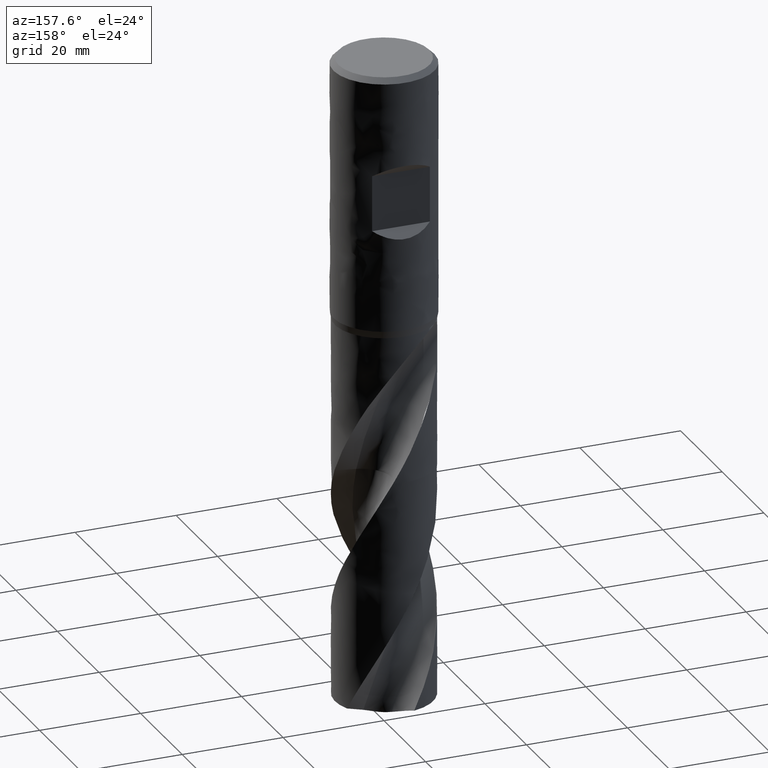
[diagram: clean part render]
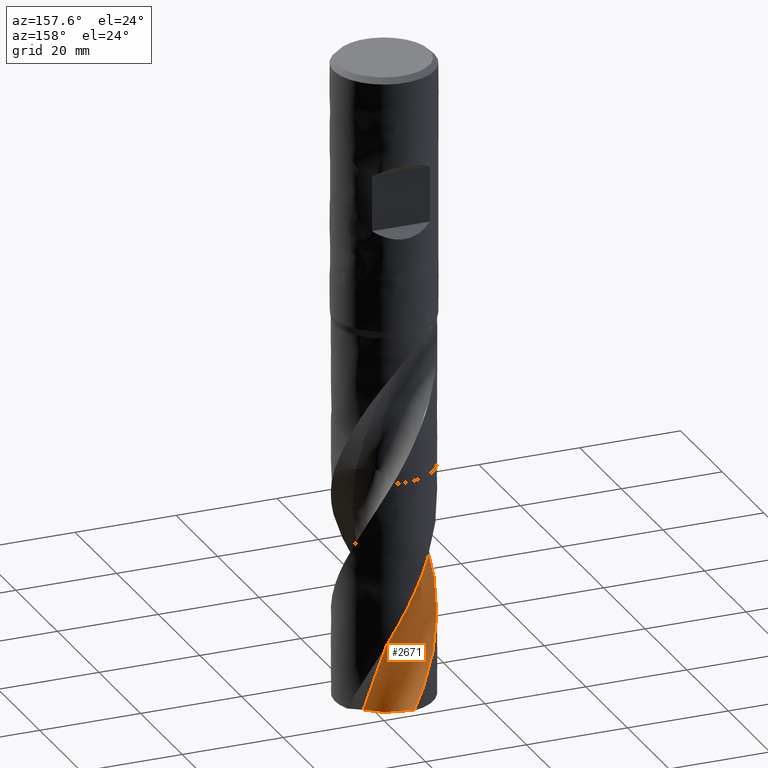
[diagram: same view with one face highlighted and labeled with its STEP entity id]
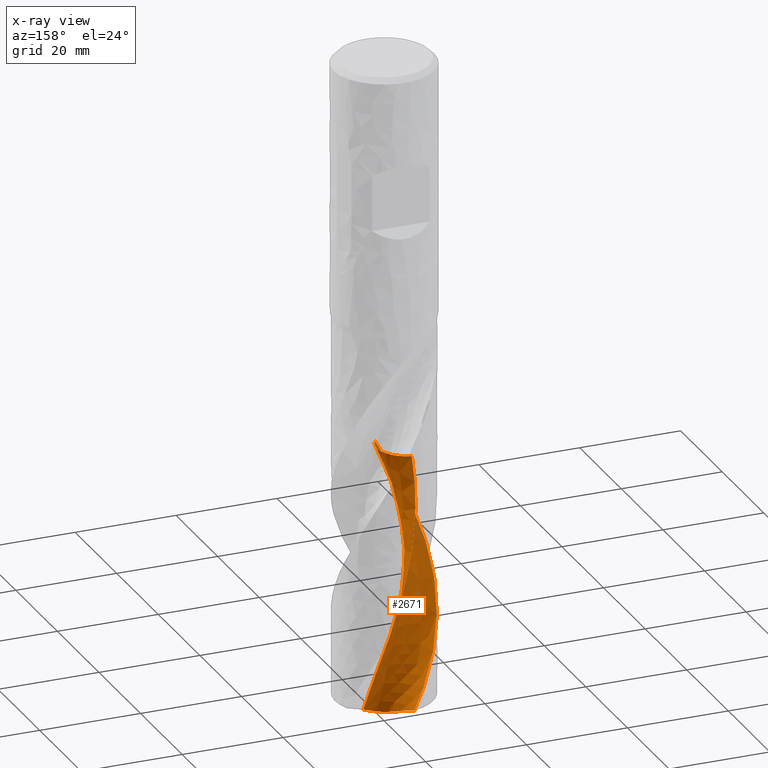
[diagram: x-ray of the same camera — body ghosted, the highlighted face saturated]
A machine part, auxiliary view. The second image highlights one B-rep face of the part: STEP entity #2671.
The next image is the same camera in x-ray: the body ghosted, the highlighted face saturated — about 3% of this face is hidden behind the body in this view.
In plain terms, the highlighted face is a freeform B-spline surface patch.
Its self-contained STEP definition (entity closure, byte-faithful):
#2099 = VERTEX_POINT('', #2100);
#2100 = CARTESIAN_POINT('', (-2.1303313621447, -9.51442001844898, -81.25));
#2215 = VERTEX_POINT('', #2216);
#2216 = CARTESIAN_POINT('', (-5.79487165966513, -0.700667770575247, -81.25));
#2222 = EDGE_CURVE('', #2215, #2099, #2223, .T.);
#2223 = B_SPLINE_CURVE_WITH_KNOTS('', 3, (#2224, #2225, #2226, #2227, #2228, #2229, #2230, #2231, #2232, #2233, #2234, #2235, #2236, #2237, #2238, #2239, #2240, #2241, #2242, #2243, #2244, #2245, #2246, #2247, #2248, #2249, #2250, #2251, #2252, #2253, #2254, #2255, #2256, #2257, #2258, #2259, #2260, #2261, #2262, #2263, #2264, #2265, #2266, #2267, #2268, #2269, #2270, #2271, #2272, #2273, #2274, #2275, #2276, #2277, #2278, #2279, #2280, #2281, #2282, #2283, #2284, #2285, #2286, #2287, #2288, #2289, #2290, #2291, #2292, #2293, #2294, #2295, #2296, #2297, #2298, #2299, #2300, #2301, #2302, #2303, #2304, #2305, #2306, #2307, #2308), .UNSPECIFIED., .F., .U., (4, 3, 3, 3, 3, 3, 3, 3, 3, 3, 3, 3, 3, 3, 3, 3, 3, 3, 3, 3, 3, 3, 3, 3, 3, 3, 3, 3, 4), (0., 0.445438478742178, 0.89053582433214, 1.33529858425115, 1.77973217103875, 2.22384093205399, 2.66762820456157, 3.11109635764876, 3.55424682209733, 3.99708010900506, 4.43959581765818, 4.88179263288638, 5.32366831187187, 5.52035944247492, 5.60786094109893, 5.6467910889325, 6.09220446272866, 6.53727722058495, 6.98201582457693, 7.42642560745706, 7.87051084128652, 8.31427479151568, 8.75771975798971, 9.20084710397753, 9.64365727399644, 10.0861498009137, 10.5283233025367, 10.9701754676464, 11.1611266697053), .UNSPECIFIED.);
#2224 = CARTESIAN_POINT('', (-5.79487165966514, -0.700667770575248, -81.25));
#2225 = CARTESIAN_POINT('', (-5.650055718771, -0.733447384346021, -81.25));
#2226 = CARTESIAN_POINT('', (-5.50638472364921, -0.771772103794922, -81.25));
#2227 = CARTESIAN_POINT('', (-5.36448272780797, -0.815475460557196, -81.25));
#2228 = CARTESIAN_POINT('', (-5.22268940572857, -0.859145347683222, -81.25));
#2229 = CARTESIAN_POINT('', (-5.08245730758918, -0.908248780882545, -81.25));
#2230 = CARTESIAN_POINT('', (-4.94439461800622, -0.962572799263302, -81.25));
#2231 = CARTESIAN_POINT('', (-4.80643571200697, -1.0168559815476, -81.25));
#2232 = CARTESIAN_POINT('', (-4.6704437328964, -1.07643027834599, -81.25));
#2233 = CARTESIAN_POINT('', (-4.5370075905335, -1.14103770465851, -81.25));
#2234 = CARTESIAN_POINT('', (-4.40367020552347, -1.20559731440285, -81.25));
#2235 = CARTESIAN_POINT('', (-4.27269261268322, -1.27527568315273, -81.25));
#2236 = CARTESIAN_POINT('', (-4.14464116884227, -1.3497715164718, -81.25));
#2237 = CARTESIAN_POINT('', (-4.01668331470828, -1.4242129025859, -81.25));
#2238 = CARTESIAN_POINT('', (-3.89146309717154, -1.50357188260932, -81.25));
#2239 = CARTESIAN_POINT('', (-3.7695211874044, -1.58750580330595, -81.25));
#2240 = CARTESIAN_POINT('', (-3.64766755088478, -1.67137896458219, -81.25));
#2241 = CARTESIAN_POINT('', (-3.52891228316294, -1.75994101932054, -81.25));
#2242 = CARTESIAN_POINT('', (-3.41376739999561, -1.85281013041733, -81.25));
#2243 = CARTESIAN_POINT('', (-3.29870531543621, -1.94561246101197, -81.25));
#2244 = CARTESIAN_POINT('', (-3.18708323205514, -2.04284887596128, -81.25));
#2245 = CARTESIAN_POINT('', (-3.07938171960083, -2.1441007405466, -81.25));
#2246 = CARTESIAN_POINT('', (-2.97175736160875, -2.24528007102369, -81.25));
#2247 = CARTESIAN_POINT('', (-2.86789366486767, -2.35061413892586, -81.25));
#2248 = CARTESIAN_POINT('', (-2.76823715696246, -2.45965009529411, -81.25));
#2249 = CARTESIAN_POINT('', (-2.66865197653775, -2.56860801099834, -81.25));
#2250 = CARTESIAN_POINT('', (-2.57312539837042, -2.68141848522746, -81.25));
#2251 = CARTESIAN_POINT('', (-2.48206752032289, -2.79759721994391, -81.25));
#2252 = CARTESIAN_POINT('', (-2.39107494450723, -2.91369263698555, -81.25));
#2253 = CARTESIAN_POINT('', (-2.30441458173085, -3.03331743264568, -81.25));
#2254 = CARTESIAN_POINT('', (-2.22245793413602, -3.15595879037894, -81.25));
#2255 = CARTESIAN_POINT('', (-2.14056034757685, -3.27851176814775, -81.25));
#2256 = CARTESIAN_POINT('', (-2.06324278812382, -3.40425188909768, -81.25));
#2257 = CARTESIAN_POINT('', (-1.99083622946069, -3.53264089683113, -81.25));
#2258 = CARTESIAN_POINT('', (-1.91848225455527, -3.66093666471723, -81.25));
#2259 = CARTESIAN_POINT('', (-1.85092901050433, -3.79206033356708, -81.25));
#2260 = CARTESIAN_POINT('', (-1.78846525342089, -3.92545141570198, -81.25));
#2261 = CARTESIAN_POINT('', (-1.76066090123146, -3.9848274891209, -81.25));
#2262 = CARTESIAN_POINT('', (-1.73385108599112, -4.04467950769173, -81.25));
#2263 = CARTESIAN_POINT('', (-1.70805853356387, -4.10495673668088, -81.25));
#2264 = CARTESIAN_POINT('', (-1.69658426431846, -4.13177211901806, -81.25));
#2265 = CARTESIAN_POINT('', (-1.68531023113301, -4.15867406930673, -81.25));
#2266 = CARTESIAN_POINT('', (-1.67423832565911, -4.18565807371272, -81.25));
#2267 = CARTESIAN_POINT('', (-1.66931234240537, -4.19766348273069, -81.25));
#2268 = CARTESIAN_POINT('', (-1.66442627865889, -4.20968534891356, -81.25));
#2269 = CARTESIAN_POINT('', (-1.65958029670401, -4.22172327297039, -81.25));
#2270 = CARTESIAN_POINT('', (-1.60413573016637, -4.35945335276802, -81.25));
#2271 = CARTESIAN_POINT('', (-1.55390194674591, -4.49939693624681, -81.25));
#2272 = CARTESIAN_POINT('', (-1.50909711879584, -4.64094622883414, -81.25));
#2273 = CARTESIAN_POINT('', (-1.46432655393593, -4.78238727602928, -81.25));
#2274 = CARTESIAN_POINT('', (-1.42491189201081, -4.92563610467066, -81.25));
#2275 = CARTESIAN_POINT('', (-1.39102405498403, -5.07007151518755, -81.25));
#2276 = CARTESIAN_POINT('', (-1.35716166043041, -5.21439848579271, -81.25));
#2277 = CARTESIAN_POINT('', (-1.32876889005426, -5.36011864423298, -81.25));
#2278 = CARTESIAN_POINT('', (-1.30596868469553, -5.50660102148216, -81.25));
#2279 = CARTESIAN_POINT('', (-1.28318533685447, -5.65297509579176, -81.25));
#2280 = CARTESIAN_POINT('', (-1.26595342788655, -5.80032129268378, -81.25));
#2281 = CARTESIAN_POINT('', (-1.25434746187178, -5.94800254444481, -81.25));
#2282 = CARTESIAN_POINT('', (-1.24274997160484, -6.0955759457221, -81.25));
#2283 = CARTESIAN_POINT('', (-1.23675350229713, -6.24369636189629, -81.25));
#2284 = CARTESIAN_POINT('', (-1.23638394253939, -6.39172431186056, -81.25));
#2285 = CARTESIAN_POINT('', (-1.2360146501481, -6.53964516762515, -81.25));
#2286 = CARTESIAN_POINT('', (-1.24126358584812, -6.68768633284561, -81.25));
#2287 = CARTESIAN_POINT('', (-1.25210812112224, -6.83520959203442, -81.25));
#2288 = CARTESIAN_POINT('', (-1.26294486119221, -6.9826268094342, -81.25));
#2289 = CARTESIAN_POINT('', (-1.27938470361027, -7.12973847917799, -81.25));
#2290 = CARTESIAN_POINT('', (-1.30135687684578, -7.2759113033436, -81.25));
#2291 = CARTESIAN_POINT('', (-1.32331331236212, -7.42197943022545, -81.25));
#2292 = CARTESIAN_POINT('', (-1.35082561772212, -7.56731943412406, -81.25));
#2293 = CARTESIAN_POINT('', (-1.38377552520294, -7.71130653892293, -81.25));
#2294 = CARTESIAN_POINT('', (-1.41670184822452, -7.85519058249147, -81.25));
#2295 = CARTESIAN_POINT('', (-1.45510511050732, -7.99792961642851, -81.25));
#2296 = CARTESIAN_POINT('', (-1.49882046313067, -8.13891092258777, -81.25));
#2297 = CARTESIAN_POINT('', (-1.54250445721453, -8.27979109796367, -81.25));
#2298 = CARTESIAN_POINT('', (-1.59155535062665, -8.41911743232396, -81.25));
#2299 = CARTESIAN_POINT('', (-1.64576289032544, -8.55629271359893, -81.25));
#2300 = CARTESIAN_POINT('', (-1.69993134783584, -8.69336909515969, -81.25));
#2301 = CARTESIAN_POINT('', (-1.75932632060481, -8.82849317237358, -81.25));
#2302 = CARTESIAN_POINT('', (-1.82369358303993, -8.96108657981699, -81.25));
#2303 = CARTESIAN_POINT('', (-1.88801406847097, -9.09358362892346, -81.25));
#2304 = CARTESIAN_POINT('', (-1.95739127809331, -9.22374252424689, -81.25));
#2305 = CARTESIAN_POINT('', (-2.03152869078605, -9.35100696117737, -81.25));
#2306 = CARTESIAN_POINT('', (-2.06356797720147, -9.40600566692141, -81.25));
#2307 = CARTESIAN_POINT('', (-2.09651407554776, -9.46049632574577, -81.25));
#2308 = CARTESIAN_POINT('', (-2.1303313621447, -9.51442001844898, -81.25));
#2576 = EDGE_CURVE('', #2099, #2577, #2579, .T.);
#2577 = VERTEX_POINT('', #2578);
#2578 = CARTESIAN_POINT('', (-4.9410709043237, -8.40525539876366, -86.5190317909067));
#2579 = B_SPLINE_CURVE_WITH_KNOTS('', 3, (#2580, #2581, #2582, #2583, #2584, #2585, #2586, #2587, #2588, #2589, #2590, #2591, #2592, #2593, #2594, #2595), .UNSPECIFIED., .F., .U., (4, 3, 3, 3, 3, 4), (11.847017486979, 13.2116838659022, 14.709698213569, 16.2074142235632, 17.7048427508972, 17.9267222328818), .UNSPECIFIED.);
#2580 = CARTESIAN_POINT('', (-2.1303313621447, -9.51442001844898, -81.25));
#2581 = CARTESIAN_POINT('', (-2.35197104986254, -9.46479366424917, -81.6441280093711));
#2582 = CARTESIAN_POINT('', (-2.57186920348224, -9.40741949953923, -82.038363018998));
#2583 = CARTESIAN_POINT('', (-2.78943116547099, -9.34246079858495, -82.4325342683803));
#2584 = CARTESIAN_POINT('', (-3.02825212977354, -9.2711546775152, -82.8652218439901));
#2585 = CARTESIAN_POINT('', (-3.26435802313561, -9.19067774677503, -83.2980020038723));
#2586 = CARTESIAN_POINT('', (-3.496959546844, -9.10130616602558, -83.7307233988858));
#2587 = CARTESIAN_POINT('', (-3.72951474669884, -9.01195238411059, -84.1633586150892));
#2588 = CARTESIAN_POINT('', (-3.95865082601514, -8.91367550219773, -84.5960939338208));
#2589 = CARTESIAN_POINT('', (-4.18361093543052, -8.80680983903623, -85.0287738719163));
#2590 = CARTESIAN_POINT('', (-4.4085278643429, -8.6999646884585, -85.4613707582324));
#2591 = CARTESIAN_POINT('', (-4.62935237651358, -8.58449540937735, -85.8940702853487));
#2592 = CARTESIAN_POINT('', (-4.84536490896236, -8.46078831427638, -86.3267118432352));
#2593 = CARTESIAN_POINT('', (-4.87737227888154, -8.4424581798641, -86.3908179311029));
#2594 = CARTESIAN_POINT('', (-4.90927504844759, -8.42394674969758, -86.454924747551));
#2595 = CARTESIAN_POINT('', (-4.94107090432363, -8.40525539876371, -86.5190317909066));
#2671 = ADVANCED_FACE('', (#2672), #2906, .T.);
#2672 = FACE_OUTER_BOUND('', #2673, .T.);
#2673 = EDGE_LOOP('', (#2674, #2675, #2710, #2860, #2878, #2905));
#2674 = ORIENTED_EDGE('', *, *, #2222, .F.);
#2675 = ORIENTED_EDGE('', *, *, #2676, .F.);
#2676 = EDGE_CURVE('', #2677, #2215, #2679, .T.);
#2677 = VERTEX_POINT('', #2678);
#2678 = CARTESIAN_POINT('', (5.20453332655529, 2.64650215276835, -128.874864455112));
#2679 = (
   BOUNDED_CURVE ()
   B_SPLINE_CURVE (3, (#2680, #2681, #2682, #2683, #2684, #2685, #2686, #2687, #2688, #2689, #2690, #2691, #2692, #2693, #2694, #2695, #2696, #2697, #2698, #2699, #2700, #2701, #2702, #2703, #2704, #2705, #2706, #2707, #2708, #2709), .UNSPECIFIED., .F., .U.)
   B_SPLINE_CURVE_WITH_KNOTS ((4, 1, 1, 1, 1, 1, 1, 1, 1, 1, 1, 1, 1, 1, 1, 1, 1, 1, 1, 1, 1, 1, 1, 1, 1, 1, 1, 4), (2.17513554488771, 3.59409090909091, 5.39113636363636, 7.18818181818182, 8.98522727272727, 10.7822727272727, 12.5793181818182, 14.3763636363636, 16.1734090909091, 17.9704545454545, 19.7675, 21.5645454545455, 23.3615909090909, 25.1586363636364, 26.9556818181818, 28.7527272727273, 30.5497727272727, 32.3468181818182, 34.1438636363636, 35.9409090909091, 37.7379545454545, 39.535, 41.3320454545455, 43.1290909090909, 44.9261363636364, 46.7231818181818, 48.5202272727273, 49.8), .UNSPECIFIED.)
   CURVE ()
   GEOMETRIC_REPRESENTATION_ITEM ()
   RATIONAL_B_SPLINE_CURVE ((1., 1., 1., 1., 1., 1., 1., 1., 1., 1., 1., 1., 1., 1., 1., 1., 1., 1., 1., 1., 1., 1., 1., 1., 1., 1., 1., 1., 1., 1.))
   REPRESENTATION_ITEM ('')
);
#2680 = CARTESIAN_POINT('', (5.20453332655529, 2.64650215276835, -128.874864455112));
#2681 = CARTESIAN_POINT('', (5.12772566920618, 2.78904303751222, -128.401879333711));
#2682 = CARTESIAN_POINT('', (4.94062056874988, 3.10467070062692, -127.329879060795));
#2683 = CARTESIAN_POINT('', (4.60519286852005, 3.56677039742829, -125.658863636364));
#2684 = CARTESIAN_POINT('', (4.19593244438877, 4.0227559318071, -123.861818181818));
#2685 = CARTESIAN_POINT('', (3.74264239469812, 4.43315419355822, -122.064772727273));
#2686 = CARTESIAN_POINT('', (3.25026342139271, 4.7938334214426, -120.267727272727));
#2687 = CARTESIAN_POINT('', (2.72410868545958, 5.10118041557474, -118.470681818182));
#2688 = CARTESIAN_POINT('', (2.16981419772114, 5.35213545623919, -116.673636363636));
#2689 = CARTESIAN_POINT('', (1.59328194765886, 5.54421912375713, -114.876590909091));
#2690 = CARTESIAN_POINT('', (1.0006220687681, 5.67555441648993, -113.079545454545));
#2691 = CARTESIAN_POINT('', (0.39809299749953, 5.74488304443128, -111.2825));
#2692 = CARTESIAN_POINT('', (-0.207959437153887, 5.751576043841, -109.485454545455));
#2693 = CARTESIAN_POINT('', (-0.811163578612336, 5.69563857601772, -107.688409090909));
#2694 = CARTESIAN_POINT('', (-1.40518360369422, 5.57770890650514, -105.891363636364));
#2695 = CARTESIAN_POINT('', (-1.9837807603662, 5.39905158270688, -104.094318181818));
#2696 = CARTESIAN_POINT('', (-2.54087365756571, 5.16154487905098, -102.297272727273));
#2697 = CARTESIAN_POINT('', (-3.07059709362434, 4.86766262122732, -100.500227272727));
#2698 = CARTESIAN_POINT('', (-3.56735891970645, 4.52045054540657, -98.7031818181818));
#2699 = CARTESIAN_POINT('', (-4.02589445349643, 4.1234973885984, -96.9061363636364));
#2700 = CARTESIAN_POINT('', (-4.44131796266385, 3.68090095494357, -95.1090909090909));
#2701 = CARTESIAN_POINT('', (-4.80917081056507, 3.19722941456814, -93.3120454545455));
#2702 = CARTESIAN_POINT('', (-5.12546568859834, 2.67747823366935, -91.515));
#2703 = CARTESIAN_POINT('', (-5.38672710540307, 2.12702278265381, -89.7179545454546));
#2704 = CARTESIAN_POINT('', (-5.59002565262312, 1.55156815155003, -87.9209090909091));
#2705 = CARTESIAN_POINT('', (-5.73301360511305, 0.957092328832693, -86.1238636363637));
#2706 = CARTESIAN_POINT('', (-5.81393211017164, 0.349799100757407, -84.3268181818182));
#2707 = CARTESIAN_POINT('', (-5.82999484116487, -0.205087066793357, -82.702196969697));
#2708 = CARTESIAN_POINT('', (-5.80896572614643, -0.555353747942273, -81.6765909090909));
#2709 = CARTESIAN_POINT('', (-5.79487165966514, -0.700667770575247, -81.25));
#2710 = ORIENTED_EDGE('', *, *, #2711, .T.);
#2711 = EDGE_CURVE('', #2677, #2712, #2714, .T.);
#2712 = VERTEX_POINT('', #2713);
#2713 = CARTESIAN_POINT('', (-2.05807342707276, 9.53031131541762, -127.451290215905));
#2714 = B_SPLINE_CURVE_WITH_KNOTS('', 3, (#2715, #2716, #2717, #2718, #2719, #2720, #2721, #2722, #2723, #2724, #2725, #2726, #2727, #2728, #2729, #2730, #2731, #2732, #2733, #2734, #2735, #2736, #2737, #2738, #2739, #2740, #2741, #2742, #2743, #2744, #2745, #2746, #2747, #2748, #2749, #2750, #2751, #2752, #2753, #2754, #2755, #2756, #2757, #2758, #2759, #2760, #2761, #2762, #2763, #2764, #2765, #2766, #2767, #2768, #2769, #2770, #2771, #2772, #2773, #2774, #2775, #2776, #2777, #2778, #2779, #2780, #2781, #2782, #2783, #2784, #2785, #2786, #2787, #2788, #2789, #2790, #2791, #2792, #2793, #2794, #2795, #2796, #2797, #2798, #2799, #2800, #2801, #2802, #2803, #2804, #2805, #2806, #2807, #2808, #2809, #2810, #2811, #2812, #2813, #2814, #2815, #2816, #2817, #2818, #2819, #2820, #2821, #2822, #2823, #2824, #2825, #2826, #2827, #2828, #2829, #2830, #2831, #2832, #2833, #2834, #2835, #2836, #2837, #2838, #2839, #2840, #2841, #2842, #2843, #2844, #2845, #2846, #2847, #2848, #2849, #2850, #2851, #2852, #2853, #2854, #2855, #2856, #2857, #2858, #2859), .UNSPECIFIED., .F., .U., (4, 3, 3, 3, 3, 3, 3, 3, 3, 3, 3, 3, 3, 3, 3, 3, 3, 3, 3, 3, 3, 3, 3, 3, 3, 3, 3, 3, 3, 3, 3, 3, 3, 3, 3, 3, 3, 3, 3, 3, 3, 3, 3, 3, 3, 3, 3, 3, 4), (0., 0.295866908989549, 0.591567122903091, 0.887053138640463, 1.18227485341276, 1.47718589365852, 1.67379157373443, 1.87029528481363, 2.06670143985107, 2.2630210090454, 2.4592723101724, 2.65548096589276, 2.85167868297317, 3.04790070020538, 3.24418210338046, 3.44055362256181, 3.63703782426069, 3.83364660546294, 4.03038053876245, 4.22723005587701, 4.42417795177, 4.6212024489151, 4.81828011816921, 5.01538819964731, 5.21250615161821, 5.40961647176947, 5.6067049493596, 5.66509313921383, 5.70402739195665, 6.00104353904463, 6.05948164121974, 6.0984318218436, 6.39614651578059, 6.69341911225682, 6.99030924686759, 7.28686915272973, 7.5831433889526, 7.87916933458922, 8.17497799951725, 8.47059491114831, 8.76604095810608, 9.06133314012232, 9.35648520931134, 9.65150820561147, 10.0933420715978, 10.5348027247015, 10.9759132055802, 11.4166872433103, 11.6348332551151), .UNSPECIFIED.);
#2715 = CARTESIAN_POINT('', (5.20453332655529, 2.64650215276835, -128.874864455112));
#2716 = CARTESIAN_POINT('', (5.11426357758619, 2.62431570446977, -128.907811269545));
#2717 = CARTESIAN_POINT('', (5.0231325083285, 2.60505305828214, -128.940514972909));
#2718 = CARTESIAN_POINT('', (4.93137761264689, 2.58882925208974, -128.972828838036));
#2719 = CARTESIAN_POINT('', (4.83967441280841, 2.57261458659042, -129.005124497131));
#2720 = CARTESIAN_POINT('', (4.74725616970508, 2.55941939254554, -129.037063325875));
#2721 = CARTESIAN_POINT('', (4.65437392057911, 2.54934141804648, -129.068475490104));
#2722 = CARTESIAN_POINT('', (4.56155895313717, 2.53927074379157, -129.099864900112));
#2723 = CARTESIAN_POINT('', (4.46818341092507, 2.53230259984761, -129.13076145581));
#2724 = CARTESIAN_POINT('', (4.37451133738018, 2.52851333263468, -129.160969332492));
#2725 = CARTESIAN_POINT('', (4.28092304993048, 2.52472745477666, -129.19115018938));
#2726 = CARTESIAN_POINT('', (4.18693620347433, 2.5241110875594, -129.220676732582));
#2727 = CARTESIAN_POINT('', (4.09282734198924, 2.52671398598128, -129.249325147045));
#2728 = CARTESIAN_POINT('', (3.99881751531263, 2.52931414526104, -129.277943413547));
#2729 = CARTESIAN_POINT('', (3.90457811362217, 2.53513035659535, -129.305718075948));
#2730 = CARTESIAN_POINT('', (3.81039773260897, 2.54417920120367, -129.332397426786));
#2731 = CARTESIAN_POINT('', (3.74761134847266, 2.55021171272524, -129.350183508687));
#2732 = CARTESIAN_POINT('', (3.68480973447221, 2.55768380049328, -129.367494131145));
#2733 = CARTESIAN_POINT('', (3.62208149054643, 2.56659038122652, -129.384248419289));
#2734 = CARTESIAN_POINT('', (3.55938578045231, 2.57549234258609, -129.400994017867));
#2735 = CARTESIAN_POINT('', (3.49672881604296, 2.58583231326638, -129.417192980521));
#2736 = CARTESIAN_POINT('', (3.43420141004087, 2.59759579250825, -129.432760771204));
#2737 = CARTESIAN_POINT('', (3.3717050463341, 2.60935343166463, -129.448320833117));
#2738 = CARTESIAN_POINT('', (3.30930265827892, 2.62253993659496, -129.463259021092));
#2739 = CARTESIAN_POINT('', (3.24708700393097, 2.63713009997544, -129.477489009442));
#2740 = CARTESIAN_POINT('', (3.18489877741433, 2.65171383126831, -129.491712724487));
#2741 = CARTESIAN_POINT('', (3.12286089279592, 2.66770857176153, -129.505236942354));
#2742 = CARTESIAN_POINT('', (3.06106755683987, 2.68507720352534, -129.517976214998));
#2743 = CARTESIAN_POINT('', (2.99929570886711, 2.70243979552995, -129.530711057693));
#2744 = CARTESIAN_POINT('', (2.93773144378064, 2.72118573728349, -129.542668833553));
#2745 = CARTESIAN_POINT('', (2.8764695813722, 2.74126508495476, -129.553768429623));
#2746 = CARTESIAN_POINT('', (2.81522103116612, 2.76134006938389, -129.56486561375));
#2747 = CARTESIAN_POINT('', (2.75423768167868, 2.78276006489173, -129.575111427821));
#2748 = CARTESIAN_POINT('', (2.69361369728117, 2.80546193749739, -129.584433170882));
#2749 = CARTESIAN_POINT('', (2.63299309267307, 2.82816254447279, -129.593754394255));
#2750 = CARTESIAN_POINT('', (2.57269485966727, 2.85215870459852, -129.60215705772));
#2751 = CARTESIAN_POINT('', (2.51281077501559, 2.87737455495147, -129.609581191454));
#2752 = CARTESIAN_POINT('', (2.45291927339511, 2.90259352842431, -129.617006244707));
#2753 = CARTESIAN_POINT('', (2.393405670067, 2.92904771776273, -129.623456806107));
#2754 = CARTESIAN_POINT('', (2.33435723922817, 2.9566500227088, -129.628889630632));
#2755 = CARTESIAN_POINT('', (2.27529093757754, 2.98426068140094, -129.634324099384));
#2756 = CARTESIAN_POINT('', (2.21665488597066, 3.01303645582606, -129.638743317149));
#2757 = CARTESIAN_POINT('', (2.15852957681634, 3.04288157034754, -129.642123774163));
#2758 = CARTESIAN_POINT('', (2.10037758138079, 3.0727403872498, -129.6455057832));
#2759 = CARTESIAN_POINT('', (2.04270330586106, 3.10368651395471, -129.647850008024));
#2760 = CARTESIAN_POINT('', (1.98557834733961, 3.13561894090674, -129.649154127628));
#2761 = CARTESIAN_POINT('', (1.92842060919631, 3.16756969142359, -129.650458995566));
#2762 = CARTESIAN_POINT('', (1.87178155779525, 3.20052510234924, -129.650723388509));
#2763 = CARTESIAN_POINT('', (1.81572230489787, 3.23438283918801, -129.649965767675));
#2764 = CARTESIAN_POINT('', (1.75962750800346, 3.2682620433, -129.649207666477));
#2765 = CARTESIAN_POINT('', (1.70408462675159, 3.30306174471466, -129.647426089452));
#2766 = CARTESIAN_POINT('', (1.64914349441197, 3.33868212643737, -129.644658091893));
#2767 = CARTESIAN_POINT('', (1.59416738907726, 3.37432518245494, -129.641888332355));
#2768 = CARTESIAN_POINT('', (1.53976808294783, 3.41080639422301, -129.638129895293));
#2769 = CARTESIAN_POINT('', (1.48598423539505, 3.44803173348285, -129.633434895043));
#2770 = CARTESIAN_POINT('', (1.43216878911304, 3.48527894312701, -129.628737136417));
#2771 = CARTESIAN_POINT('', (1.37894679999684, 3.52328667615236, -129.623100053808));
#2772 = CARTESIAN_POINT('', (1.32634666435565, 3.56196905223321, -129.61658658068));
#2773 = CARTESIAN_POINT('', (1.27372024093298, 3.60067076046668, -129.610069852338));
#2774 = CARTESIAN_POINT('', (1.22169648755827, 3.64006218962383, -129.602673716786));
#2775 = CARTESIAN_POINT('', (1.17029502152974, 3.68006693832645, -129.594467634767));
#2776 = CARTESIAN_POINT('', (1.11887356332693, 3.72008724654458, -129.58625836106));
#2777 = CARTESIAN_POINT('', (1.06805779203281, 3.76073453420834, -129.57723605466));
#2778 = CARTESIAN_POINT('', (1.01786031652156, 3.80194226688929, -129.567472867273));
#2779 = CARTESIAN_POINT('', (0.9676492939353, 3.84316112053279, -129.55770704504));
#2780 = CARTESIAN_POINT('', (0.918042254450458, 3.88495267409064, -129.547197309468));
#2781 = CARTESIAN_POINT('', (0.869046596124158, 3.92725991543423, -129.536015415004));
#2782 = CARTESIAN_POINT('', (0.820043376987233, 3.96957368545916, -129.524831794995));
#2783 = CARTESIAN_POINT('', (0.771639197671956, 4.01241408555451, -129.512973107463));
#2784 = CARTESIAN_POINT('', (0.723837884523163, 4.0557327994919, -129.50050845905));
#2785 = CARTESIAN_POINT('', (0.676034177649497, 4.09905368268106, -129.488043186451));
#2786 = CARTESIAN_POINT('', (0.628822658395774, 4.14286264873552, -129.474969198036));
#2787 = CARTESIAN_POINT('', (0.58220496058522, 4.18711899806921, -129.461351484328));
#2788 = CARTESIAN_POINT('', (0.535589067672992, 4.23137363392894, -129.447734297858));
#2789 = CARTESIAN_POINT('', (0.489557697986893, 4.27608440877347, -129.433570788405));
#2790 = CARTESIAN_POINT('', (0.444111380614293, 4.32121708307688, -129.418921010866));
#2791 = CARTESIAN_POINT('', (0.398670099324858, 4.36634475605313, -129.404272856726));
#2792 = CARTESIAN_POINT('', (0.353805705153107, 4.41190223277038, -129.389135982072));
#2793 = CARTESIAN_POINT('', (0.309518433849299, 4.45786061604124, -129.373565177956));
#2794 = CARTESIAN_POINT('', (0.296398166055714, 4.47147595693089, -129.368952269693));
#2795 = CARTESIAN_POINT('', (0.283328138623409, 4.48512693641023, -129.364301101293));
#2796 = CARTESIAN_POINT('', (0.270308360827041, 4.49881287924002, -129.359613008701));
#2797 = CARTESIAN_POINT('', (0.261626548278225, 4.50793890213077, -129.356486907646));
#2798 = CARTESIAN_POINT('', (0.252967013643683, 4.51708054058092, -129.353344364142));
#2799 = CARTESIAN_POINT('', (0.244329760456831, 4.5262376021115, -129.350185764413));
#2800 = CARTESIAN_POINT('', (0.178439099091677, 4.59609370420307, -129.326089883391));
#2801 = CARTESIAN_POINT('', (0.113832743456451, 4.66685914768815, -129.301057037462));
#2802 = CARTESIAN_POINT('', (0.0505140999395593, 4.73845876459432, -129.275244056641));
#2803 = CARTESIAN_POINT('', (0.0380561194704612, 4.75254603146343, -129.270165337435));
#2804 = CARTESIAN_POINT('', (0.0256475337052346, 4.76666615348464, -129.265056158633));
#2805 = CARTESIAN_POINT('', (0.0132883883133565, 4.78081862747455, -129.259917602501));
#2806 = CARTESIAN_POINT('', (0.00505076718172073, 4.79025153849773, -129.256492650593));
#2807 = CARTESIAN_POINT('', (-0.00316494264954741, 4.79969888249944, -129.253054625255));
#2808 = CARTESIAN_POINT('', (-0.0113587258224355, 4.80916051527189, -129.249603838324));
#2809 = CARTESIAN_POINT('', (-0.0739876946854851, 4.88148025961906, -129.223227838045));
#2810 = CARTESIAN_POINT('', (-0.135346051329134, 4.9546457423802, -129.196103679225));
#2811 = CARTESIAN_POINT('', (-0.195423882197189, 5.02859886059357, -129.168358101222));
#2812 = CARTESIAN_POINT('', (-0.255412499274271, 5.10244216062717, -129.140653724577));
#2813 = CARTESIAN_POINT('', (-0.314140569161374, 5.17709086680473, -129.112322093766));
#2814 = CARTESIAN_POINT('', (-0.371592453400045, 5.25249531249964, -129.083469880838));
#2815 = CARTESIAN_POINT('', (-0.428970421794874, 5.3278027451321, -129.054654788289));
#2816 = CARTESIAN_POINT('', (-0.485089941722852, 5.40388311597148, -129.025312986824));
#2817 = CARTESIAN_POINT('', (-0.539929606717208, 5.48069203701902, -128.995534621921));
#2818 = CARTESIAN_POINT('', (-0.594708273948972, 5.55741552405941, -128.965789379278));
#2819 = CARTESIAN_POINT('', (-0.648223123045509, 5.63488456385436, -128.935601192855));
#2820 = CARTESIAN_POINT('', (-0.700447218916326, 5.71305775587367, -128.905046795999));
#2821 = CARTESIAN_POINT('', (-0.752621008463416, 5.79115564537527, -128.874521831523));
#2822 = CARTESIAN_POINT('', (-0.803518772058434, 5.86997478281099, -128.843624035035));
#2823 = CARTESIAN_POINT('', (-0.853108397817476, 5.94947506920872, -128.812419362367));
#2824 = CARTESIAN_POINT('', (-0.90265646533167, 6.02890873093814, -128.781240840559));
#2825 = CARTESIAN_POINT('', (-0.950910093626688, 6.10904096012782, -128.749748574826));
#2826 = CARTESIAN_POINT('', (-0.99783236910007, 6.18983168501775, -128.717999926533));
#2827 = CARTESIAN_POINT('', (-1.04472020399345, 6.270563110153, -128.686274581498));
#2828 = CARTESIAN_POINT('', (-1.09028955619305, 6.35197096200345, -128.654285723879));
#2829 = CARTESIAN_POINT('', (-1.13449906707105, 6.43401419471503, -128.622083911863));
#2830 = CARTESIAN_POINT('', (-1.17867991983158, 6.51600424419625, -128.589902974164));
#2831 = CARTESIAN_POINT('', (-1.22151311307002, 6.5986482821084, -128.557501666348));
#2832 = CARTESIAN_POINT('', (-1.26295316668885, 6.68190346285725, -128.524925209353));
#2833 = CARTESIAN_POINT('', (-1.30436926822326, 6.76511052264719, -128.49236758134));
#2834 = CARTESIAN_POINT('', (-1.3444038180586, 6.84894815783136, -128.459627074378));
#2835 = CARTESIAN_POINT('', (-1.3830075049875, 6.93337100504546, -128.426744774721));
#2836 = CARTESIAN_POINT('', (-1.42159108755523, 7.01774988580076, -128.393879599791));
#2837 = CARTESIAN_POINT('', (-1.45875485966549, 7.10273437608828, -128.360864556411));
#2838 = CARTESIAN_POINT('', (-1.4944459439455, 7.1882759367893, -128.327737588844));
#2839 = CARTESIAN_POINT('', (-1.53012009320647, 7.27377690897953, -128.294626339652));
#2840 = CARTESIAN_POINT('', (-1.56433210032274, 7.35985645054518, -128.26139470978));
#2841 = CARTESIAN_POINT('', (-1.59702577325825, 7.44646221529712, -128.228078328587));
#2842 = CARTESIAN_POINT('', (-1.62970514893058, 7.53303010650042, -128.194776516974));
#2843 = CARTESIAN_POINT('', (-1.66087623229027, 7.62014695791716, -128.161381079646));
#2844 = CARTESIAN_POINT('', (-1.69047976901744, 7.7077559882112, -128.12792602827));
#2845 = CARTESIAN_POINT('', (-1.73481477084127, 7.83896147739533, -128.077822901151));
#2846 = CARTESIAN_POINT('', (-1.77565723426563, 7.97134165389511, -128.027559685313));
#2847 = CARTESIAN_POINT('', (-1.81279623652683, 8.10468372925157, -127.977246848218));
#2848 = CARTESIAN_POINT('', (-1.84990386782451, 8.23791317181969, -127.926976509901));
#2849 = CARTESIAN_POINT('', (-1.88333905003054, 8.3721931369641, -127.876622496299));
#2850 = CARTESIAN_POINT('', (-1.9128793719009, 8.50728036084494, -127.826293787692));
#2851 = CARTESIAN_POINT('', (-1.94239626201089, 8.64226043181551, -127.776005000459));
#2852 = CARTESIAN_POINT('', (-1.96804566289141, 8.77814541968461, -127.725704574307));
#2853 = CARTESIAN_POINT('', (-1.98959677476181, 8.91465621030331, -127.675503158947));
#2854 = CARTESIAN_POINT('', (-2.01113144919929, 9.051062881609, -127.625340033138));
#2855 = CARTESIAN_POINT('', (-2.02859073417717, 9.1882032069807, -127.575235742962));
#2856 = CARTESIAN_POINT('', (-2.04173959107914, 9.32575653815979, -127.525305291187));
#2857 = CARTESIAN_POINT('', (-2.04824716740494, 9.39383384770759, -127.500593924387));
#2858 = CARTESIAN_POINT('', (-2.0537012796532, 9.4620331560554, -127.475917386978));
#2859 = CARTESIAN_POINT('', (-2.05807342707276, 9.53031131541762, -127.451290215905));
#2860 = ORIENTED_EDGE('', *, *, #2861, .F.);
#2861 = EDGE_CURVE('', #2862, #2712, #2864, .T.);
#2862 = VERTEX_POINT('', #2863);
#2863 = CARTESIAN_POINT('', (-4.22660150788528, 8.78625857197146, -123.400493058294));
#2864 = B_SPLINE_CURVE_WITH_KNOTS('', 3, (#2865, #2866, #2867, #2868, #2869, #2870, #2871, #2872, #2873, #2874, #2875, #2876, #2877), .UNSPECIFIED., .F., .U., (4, 3, 3, 3, 4), (0., 1.49503873945921, 2.98981329752682, 4.48432073781945, 4.65693665182759), .UNSPECIFIED.);
#2865 = CARTESIAN_POINT('', (-4.22660150788545, 8.78625857197138, -123.400493058294));
#2866 = CARTESIAN_POINT('', (-4.00490673517179, 8.89290413139425, -123.833883337135));
#2867 = CARTESIAN_POINT('', (-3.77916869008217, 8.99115497839265, -124.26737084535));
#2868 = CARTESIAN_POINT('', (-3.55011645870676, 9.08070333892805, -124.70080497854));
#2869 = CARTESIAN_POINT('', (-3.3211047020934, 9.17023587578619, -125.134162521586));
#2870 = CARTESIAN_POINT('', (-3.08870163230387, 9.25109979094859, -125.567618461076));
#2871 = CARTESIAN_POINT('', (-2.85365072442616, 9.32304550793254, -126.001019089193));
#2872 = CARTESIAN_POINT('', (-2.61864182039123, 9.39497836814172, -126.434342268165));
#2873 = CARTESIAN_POINT('', (-2.38090752422563, 9.45802021502557, -126.867762717333));
#2874 = CARTESIAN_POINT('', (-2.14120858323144, 9.51197801737862, -127.301128004405));
#2875 = CARTESIAN_POINT('', (-2.11352330668414, 9.51821015454966, -127.351181783403));
#2876 = CARTESIAN_POINT('', (-2.08581119959064, 9.52432133558843, -127.401235935562));
#2877 = CARTESIAN_POINT('', (-2.05807342707277, 9.53031131541761, -127.451290215905));
#2878 = ORIENTED_EDGE('', *, *, #2879, .T.);
#2879 = EDGE_CURVE('', #2862, #2577, #2880, .T.);
#2880 = (
   BOUNDED_CURVE ()
   B_SPLINE_CURVE (3, (#2881, #2882, #2883, #2884, #2885, #2886, #2887, #2888, #2889, #2890, #2891, #2892, #2893, #2894, #2895, #2896, #2897, #2898, #2899, #2900, #2901, #2902, #2903, #2904), .UNSPECIFIED., .F., .U.)
   B_SPLINE_CURVE_WITH_KNOTS ((4, 1, 1, 1, 1, 1, 1, 1, 1, 1, 1, 1, 1, 1, 1, 1, 1, 1, 1, 1, 1, 4), (7.64950694170556, 8.98522727272727, 10.7822727272727, 12.5793181818182, 14.3763636363636, 16.1734090909091, 17.9704545454545, 19.7675, 21.5645454545455, 23.3615909090909, 25.1586363636364, 26.9556818181818, 28.7527272727273, 30.5497727272727, 32.3468181818182, 34.1438636363636, 35.9409090909091, 37.7379545454545, 39.535, 41.3320454545455, 43.1290909090909, 44.5309682090933), .UNSPECIFIED.)
   CURVE ()
   GEOMETRIC_REPRESENTATION_ITEM ()
   RATIONAL_B_SPLINE_CURVE ((1., 1., 1., 1., 1., 1., 1., 1., 1., 1., 1., 1., 1., 1., 1., 1., 1., 1., 1., 1., 1., 1., 1., 1.))
   REPRESENTATION_ITEM ('')
);
#2881 = CARTESIAN_POINT('', (-4.22660150788528, 8.78625857197146, -123.400493058294));
#2882 = CARTESIAN_POINT('', (-4.45386180778881, 8.67171788745796, -122.955252947954));
#2883 = CARTESIAN_POINT('', (-4.97614226818851, 8.38276013409121, -121.910997686098));
#2884 = CARTESIAN_POINT('', (-5.75288467973512, 7.85631423040625, -120.267727272727));
#2885 = CARTESIAN_POINT('', (-6.5369640586964, 7.19697603425302, -118.470681818182));
#2886 = CARTESIAN_POINT('', (-7.24766318037147, 6.46120370799166, -116.673636363636));
#2887 = CARTESIAN_POINT('', (-7.87771978817567, 5.65694050044801, -114.876590909091));
#2888 = CARTESIAN_POINT('', (-8.42070779579329, 4.79279977974667, -113.079545454545));
#2889 = CARTESIAN_POINT('', (-8.87109691455008, 3.87797949512889, -111.2825));
#2890 = CARTESIAN_POINT('', (-9.22430389354378, 2.92217173521886, -109.485454545455));
#2891 = CARTESIAN_POINT('', (-9.47673492126913, 1.93546796213722, -107.688409090909));
#2892 = CARTESIAN_POINT('', (-9.62581886713574, 0.928260803686884, -105.891363636364));
#2893 = CARTESIAN_POINT('', (-9.67003109779223, -0.0888567640513691, -104.094318181818));
#2894 = CARTESIAN_POINT('', (-9.60890768111498, -1.10519397385667, -102.297272727273));
#2895 = CARTESIAN_POINT('', (-9.44304986416936, -2.11006568818969, -100.500227272727));
#2896 = CARTESIAN_POINT('', (-9.17411878731705, -3.09289579821003, -98.7031818181818));
#2897 = CARTESIAN_POINT('', (-8.80482047100984, -4.0433197225451, -96.9061363636364));
#2898 = CARTESIAN_POINT('', (-8.33888119124883, -4.95128510667257, -95.1090909090909));
#2899 = CARTESIAN_POINT('', (-7.78101341965101, -5.80714993256152, -93.3120454545455));
#2900 = CARTESIAN_POINT('', (-7.13687263397161, -6.6017769018513, -91.515));
#2901 = CARTESIAN_POINT('', (-6.41300516942602, -7.32662433557072, -89.7179545454546));
#2902 = CARTESIAN_POINT('', (-5.67515052276624, -7.926388968627, -88.0526318090901));
#2903 = CARTESIAN_POINT('', (-5.16878972422542, -8.26566549645209, -86.9863242242409));
#2904 = CARTESIAN_POINT('', (-4.9410709043237, -8.40525539876366, -86.5190317909067));
#2905 = ORIENTED_EDGE('', *, *, #2576, .F.);
#2906 = (
   BOUNDED_SURFACE ()
   B_SPLINE_SURFACE (3, 2, ((#2907, #2908, #2909, #2910, #2911), (#2912, #2913, #2914, #2915, #2916), (#2917, #2918, #2919, #2920, #2921), (#2922, #2923, #2924, #2925, #2926), (#2927, #2928, #2929, #2930, #2931), (#2932, #2933, #2934, #2935, #2936), (#2937, #2938, #2939, #2940, #2941), (#2942, #2943, #2944, #2945, #2946), (#2947, #2948, #2949, #2950, #2951), (#2952, #2953, #2954, #2955, #2956), (#2957, #2958, #2959, #2960, #2961), (#2962, #2963, #2964, #2965, #2966), (#2967, #2968, #2969, #2970, #2971), (#2972, #2973, #2974, #2975, #2976), (#2977, #2978, #2979, #2980, #2981), (#2982, #2983, #2984, #2985, #2986), (#2987, #2988, #2989, #2990, #2991), (#2992, #2993, #2994, #2995, #2996), (#2997, #2998, #2999, #3000, #3001), (#3002, #3003, #3004, #3005, #3006), (#3007, #3008, #3009, #3010, #3011), (#3012, #3013, #3014, #3015, #3016), (#3017, #3018, #3019, #3020, #3021), (#3022, #3023, #3024, #3025, #3026), (#3027, #3028, #3029, #3030, #3031), (#3032, #3033, #3034, #3035, #3036), (#3037, #3038, #3039, #3040, #3041), (#3042, #3043, #3044, #3045, #3046), (#3047, #3048, #3049, #3050, #3051), (#3052, #3053, #3054, #3055, #3056)), .UNSPECIFIED., .F., .F., .U.)
   B_SPLINE_SURFACE_WITH_KNOTS ((4, 1, 1, 1, 1, 1, 1, 1, 1, 1, 1, 1, 1, 1, 1, 1, 1, 1, 1, 1, 1, 1, 1, 1, 1, 1, 1, 4), (3, 2, 3), (1.39927661148602, 3.59409090909091, 5.39113636363636, 7.18818181818182, 8.98522727272727, 10.7822727272727, 12.5793181818182, 14.3763636363636, 16.1734090909091, 17.9704545454545, 19.7675, 21.5645454545455, 23.3615909090909, 25.1586363636364, 26.9556818181818, 28.7527272727273, 30.5497727272727, 32.3468181818182, 34.1438636363636, 35.9409090909091, 37.7379545454545, 39.535, 41.3320454545455, 43.1290909090909, 44.9261363636364, 46.7231818181818, 48.5202272727273, 49.8000000000143), (0., 0.5, 1.), .UNSPECIFIED.)
   GEOMETRIC_REPRESENTATION_ITEM ()
   RATIONAL_B_SPLINE_SURFACE (((1., 0.887010833178222, 1., 0.887010833178222, 1.), (1., 0.887010833178222, 1., 0.887010833178222, 1.), (1., 0.887010833178222, 1., 0.887010833178222, 1.), (1., 0.887010833178222, 1., 0.887010833178222, 1.), (1., 0.887010833178222, 1., 0.887010833178222, 1.), (1., 0.887010833178222, 1., 0.887010833178222, 1.), (1., 0.887010833178222, 1., 0.887010833178222, 1.), (1., 0.887010833178222, 1., 0.887010833178222, 1.), (1., 0.887010833178222, 1., 0.887010833178222, 1.), (1., 0.887010833178222, 1., 0.887010833178222, 1.), (1., 0.887010833178222, 1., 0.887010833178222, 1.), (1., 0.887010833178222, 1., 0.887010833178222, 1.), (1., 0.887010833178222, 1., 0.887010833178222, 1.), (1., 0.887010833178222, 1., 0.887010833178222, 1.), (1., 0.887010833178222, 1., 0.887010833178222, 1.), (1., 0.887010833178222, 1., 0.887010833178222, 1.), (1., 0.887010833178222, 1., 0.887010833178222, 1.), (1., 0.887010833178222, 1., 0.887010833178222, 1.), (1., 0.887010833178222, 1., 0.887010833178222, 1.), (1., 0.887010833178222, 1., 0.887010833178222, 1.), (1., 0.887010833178222, 1., 0.887010833178222, 1.), (1., 0.887010833178222, 1., 0.887010833178222, 1.), (1., 0.887010833178222, 1., 0.887010833178222, 1.), (1., 0.887010833178222, 1., 0.887010833178222, 1.), (1., 0.887010833178222, 1., 0.887010833178222, 1.), (1., 0.887010833178222, 1., 0.887010833178222, 1.), (1., 0.887010833178222, 1., 0.887010833178222, 1.), (1., 0.887010833178222, 1., 0.887010833178222, 1.), (1., 0.887010833178222, 1., 0.887010833178222, 1.), (1., 0.887010833178222, 1., 0.887010833178222, 1.)))
   REPRESENTATION_ITEM ('')
   SURFACE ()
);
#2907 = CARTESIAN_POINT('', (-0.805099858514389, 9.79414024177824, -129.650723388514));
#2908 = CARTESIAN_POINT('', (-1.60983225985025, 6.85268057374608, -129.650723388514));
#2909 = CARTESIAN_POINT('', (0.338094897437468, 4.50633042802601, -129.650723388514));
#2910 = CARTESIAN_POINT('', (2.28602205472519, 2.15998028230593, -129.650723388514));
#2911 = CARTESIAN_POINT('', (5.32532469035807, 2.40981764031033, -129.650723388514));
#2912 = CARTESIAN_POINT('', (-1.22424375220818, 9.74928477876064, -128.919118622646));
#2913 = CARTESIAN_POINT('', (-1.90199138452385, 6.77641923449037, -128.919118622646));
#2914 = CARTESIAN_POINT('', (0.144497431772467, 4.51607525133363, -128.919118622646));
#2915 = CARTESIAN_POINT('', (2.19098624806878, 2.25573126817687, -128.919118622646));
#2916 = CARTESIAN_POINT('', (5.21636940495146, 2.63563671887398, -128.919118622646));
#2917 = CARTESIAN_POINT('', (-1.98018636098481, 9.61959670348851, -127.588498705262));
#2918 = CARTESIAN_POINT('', (-2.42373365547817, 6.60431662189439, -127.588498705262));
#2919 = CARTESIAN_POINT('', (-0.208169089065126, 4.51149034507025, -127.588498705262));
#2920 = CARTESIAN_POINT('', (2.00739547734792, 2.41866406824612, -127.588498705262));
#2921 = CARTESIAN_POINT('', (4.99253402885898, 3.033152474315, -127.588498705262));
#2922 = CARTESIAN_POINT('', (-3.04405798184674, 9.30796260459535, -125.658863636364));
#2923 = CARTESIAN_POINT('', (-3.14430074170272, 6.27064207248424, -125.658863636364));
#2924 = CARTESIAN_POINT('', (-0.713770303631158, 4.44639252395889, -125.658863636364));
#2925 = CARTESIAN_POINT('', (1.7167601344404, 2.62214297543353, -125.658863636364));
#2926 = CARTESIAN_POINT('', (4.60519286852005, 3.56677039742829, -125.658863636364));
#2927 = CARTESIAN_POINT('', (-3.99740183650594, 8.9177360623363, -123.861818181818));
#2928 = CARTESIAN_POINT('', (-3.77822897586278, 5.89302383193135, -123.861818181818));
#2929 = CARTESIAN_POINT('', (-1.17481738058808, 4.33765606667677, -123.861818181818));
#2930 = CARTESIAN_POINT('', (1.42859421468662, 2.78228830142218, -123.861818181818));
#2931 = CARTESIAN_POINT('', (4.19593244438877, 4.0227559318071, -123.861818181818));
#2932 = CARTESIAN_POINT('', (-4.90345575515588, 8.43202423563934, -122.064772727273));
#2933 = CARTESIAN_POINT('', (-4.36852286075459, 5.4527833210746, -122.064772727273));
#2934 = CARTESIAN_POINT('', (-1.62124667190183, 4.18215230827357, -122.064772727273));
#2935 = CARTESIAN_POINT('', (1.12602951695092, 2.91152129547255, -122.064772727273));
#2936 = CARTESIAN_POINT('', (3.74264239469812, 4.43315419355822, -122.064772727273));
#2937 = CARTESIAN_POINT('', (-5.75288467973512, 7.85631423040625, -120.267727272727));
#2938 = CARTESIAN_POINT('', (-4.90915185329401, 4.95479836186375, -120.267727272727));
#2939 = CARTESIAN_POINT('', (-2.04842393021797, 3.98170269958209, -120.267727272727));
#2940 = CARTESIAN_POINT('', (0.812303992858063, 3.00860703730044, -120.267727272727));
#2941 = CARTESIAN_POINT('', (3.25026342139271, 4.7938334214426, -120.267727272727));
#2942 = CARTESIAN_POINT('', (-6.5369640586964, 7.19697603425302, -118.470681818182));
#2943 = CARTESIAN_POINT('', (-5.39461159558207, 4.40450740993082, -118.470681818182));
#2944 = CARTESIAN_POINT('', (-2.45192875850572, 3.73857356322865, -118.470681818182));
#2945 = CARTESIAN_POINT('', (0.490754078570632, 3.07263971652649, -118.470681818182));
#2946 = CARTESIAN_POINT('', (2.72410868545958, 5.10118041557474, -118.470681818182));
#2947 = CARTESIAN_POINT('', (-7.24766318037147, 6.46120370799166, -116.673636363636));
#2948 = CARTESIAN_POINT('', (-5.81997670627714, 3.80785905026915, -116.673636363636));
#2949 = CARTESIAN_POINT('', (-2.82759668566285, 3.4554553709397, -116.673636363636));
#2950 = CARTESIAN_POINT('', (0.164783334951439, 3.10305169161024, -116.673636363636));
#2951 = CARTESIAN_POINT('', (2.16981419772114, 5.35213545623919, -116.673636363636));
#2952 = CARTESIAN_POINT('', (-7.87771978817567, 5.65694050044801, -114.876590909091));
#2953 = CARTESIAN_POINT('', (-6.18094568975753, 3.17125102957085, -114.876590909091));
#2954 = CARTESIAN_POINT('', (-3.17155843755745, 3.13543409240564, -114.876590909091));
#2955 = CARTESIAN_POINT('', (-0.162171185357375, 3.09961715524043, -114.876590909091));
#2956 = CARTESIAN_POINT('', (1.59328194765886, 5.54421912375713, -114.876590909091));
#2957 = CARTESIAN_POINT('', (-8.42070779579329, 4.79279977974667, -113.079545454545));
#2958 = CARTESIAN_POINT('', (-6.4738805133181, 2.50146705730111, -113.079545454546));
#2959 = CARTESIAN_POINT('', (-3.48027637470744, 2.78196014818339, -113.079545454545));
#2960 = CARTESIAN_POINT('', (-0.486672236096783, 3.06245323906567, -113.079545454546));
#2961 = CARTESIAN_POINT('', (1.0006220687681, 5.67555441648993, -113.079545454545));
#2962 = CARTESIAN_POINT('', (-8.87109691455008, 3.87797949512889, -111.2825));
#2963 = CARTESIAN_POINT('', (-6.69583976835427, 1.80560988222902, -111.2825));
#2964 = CARTESIAN_POINT('', (-3.75057772136281, 2.39881384302025, -111.2825));
#2965 = CARTESIAN_POINT('', (-0.805315674371354, 2.99201780381148, -111.2825));
#2966 = CARTESIAN_POINT('', (0.39809299749953, 5.74488304443128, -111.2825));
#2967 = CARTESIAN_POINT('', (-9.22430389354378, 2.92217173521886, -109.485454545455));
#2968 = CARTESIAN_POINT('', (-6.84460536961813, 1.09103178548333, -109.485454545455));
#2969 = CARTESIAN_POINT('', (-3.97968433746992, 1.99006796931919, -109.485454545455));
#2970 = CARTESIAN_POINT('', (-1.1147633053217, 2.88910415315505, -109.485454545455));
#2971 = CARTESIAN_POINT('', (-0.207959437153887, 5.751576043841, -109.485454545455));
#2972 = CARTESIAN_POINT('', (-9.47673492126913, 1.93546796213722, -107.688409090909));
#2973 = CARTESIAN_POINT('', (-6.9187025343675, 0.365262948471941, -107.688409090909));
#2974 = CARTESIAN_POINT('', (-4.16523878692117, 1.56004781148118, -107.688409090909));
#2975 = CARTESIAN_POINT('', (-1.41177503947484, 2.75483267449042, -107.688409090909));
#2976 = CARTESIAN_POINT('', (-0.811163578612336, 5.69563857601772, -107.688409090909));
#2977 = CARTESIAN_POINT('', (-9.62581886713574, 0.928260803686884, -105.891363636364));
#2978 = CARTESIAN_POINT('', (-6.9174129072221, -0.364061645237147, -105.891363636364));
#2979 = CARTESIAN_POINT('', (-4.30532649262623, 1.1132889287203, -105.891363636364));
#2980 = CARTESIAN_POINT('', (-1.69324007803035, 2.59063950267774, -105.891363636364));
#2981 = CARTESIAN_POINT('', (-1.40518360369422, 5.57770890650514, -105.891363636364));
#2982 = CARTESIAN_POINT('', (-9.67003109779223, -0.0888567640513691, -104.094318181818));
#2983 = CARTESIAN_POINT('', (-6.84078073128061, -1.08927615631352, -104.094318181818));
#2984 = CARTESIAN_POINT('', (-4.39849379819409, 0.654493075349639, -104.094318181818));
#2985 = CARTESIAN_POINT('', (-1.95620686510757, 2.3982623070128, -104.094318181818));
#2986 = CARTESIAN_POINT('', (-1.9837807603662, 5.39905158270688, -104.094318181818));
#2987 = CARTESIAN_POINT('', (-9.60890768111498, -1.10519397385667, -102.297272727273));
#2988 = CARTESIAN_POINT('', (-6.68961202525073, -1.80275804827554, -102.297272727273));
#2989 = CARTESIAN_POINT('', (-4.44376178872226, 0.188482640177937, -102.297272727273));
#2990 = CARTESIAN_POINT('', (-2.19791155219378, 2.17972332863141, -102.297272727273));
#2991 = CARTESIAN_POINT('', (-2.54087365756571, 5.16154487905098, -102.297272727273));
#2992 = CARTESIAN_POINT('', (-9.44304986416936, -2.11006568818969, -100.500227272727));
#2993 = CARTESIAN_POINT('', (-6.4654667790328, -2.49700182565805, -100.500227272727));
#2994 = CARTESIAN_POINT('', (-4.44063575610453, -0.279846005252649, -100.500227272727));
#2995 = CARTESIAN_POINT('', (-2.41580473317626, 1.93730981515275, -100.500227272727));
#2996 = CARTESIAN_POINT('', (-3.07059709362434, 4.86766262122732, -100.500227272727));
#2997 = CARTESIAN_POINT('', (-9.17411878731705, -3.09289579821003, -98.7031818181818));
#2998 = CARTESIAN_POINT('', (-6.1706442349423, -3.16469172044587, -98.7031818181819));
#2999 = CARTESIAN_POINT('', (-4.38911022804904, -0.745569850118702, -98.7031818181818));
#3000 = CARTESIAN_POINT('', (-2.60757622115578, 1.67355202020847, -98.7031818181819));
#3001 = CARTESIAN_POINT('', (-3.56735891970645, 4.52045054540657, -98.7031818181818));
#3002 = CARTESIAN_POINT('', (-8.80482047100984, -4.0433197225451, -96.9061363636364));
#3003 = CARTESIAN_POINT('', (-5.80816137369027, -3.79877270836473, -96.9061363636364));
#3004 = CARTESIAN_POINT('', (-4.28966951428139, -1.20378687784433, -96.9061363636364));
#3005 = CARTESIAN_POINT('', (-2.7711776548725, 1.39119895267606, -96.9061363636364));
#3006 = CARTESIAN_POINT('', (-4.02589445349643, 4.1234973885984, -96.9061363636364));
#3007 = CARTESIAN_POINT('', (-8.33888119124883, -4.95128510667257, -95.1090909090909));
#3008 = CARTESIAN_POINT('', (-5.38172478271062, -4.39251923039337, -95.109090909091));
#3009 = CARTESIAN_POINT('', (-4.14328375800164, -1.64966357298621, -95.1090909090909));
#3010 = CARTESIAN_POINT('', (-2.90484273329266, 1.09319208442095, -95.109090909091));
#3011 = CARTESIAN_POINT('', (-4.44131796266385, 3.68090095494357, -95.1090909090909));
#3012 = CARTESIAN_POINT('', (-7.78101341965101, -5.80714993256152, -93.3120454545455));
#3013 = CARTESIAN_POINT('', (-4.89569611535554, -4.93960107828628, -93.3120454545455));
#3014 = CARTESIAN_POINT('', (-3.95140051571587, -2.07848192985463, -93.3120454545455));
#3015 = CARTESIAN_POINT('', (-3.0071049160762, 0.782637218577033, -93.3120454545455));
#3016 = CARTESIAN_POINT('', (-4.80917081056507, 3.19722941456814, -93.3120454545455));
#3017 = CARTESIAN_POINT('', (-7.13687263397161, -6.6017769018513, -91.515));
#3018 = CARTESIAN_POINT('', (-4.35505147826681, -5.43414567131961, -91.515));
#3019 = CARTESIAN_POINT('', (-3.71593192267741, -2.4856854245971, -91.515));
#3020 = CARTESIAN_POINT('', (-3.07681236708801, 0.462774822125401, -91.515));
#3021 = CARTESIAN_POINT('', (-5.12546568859834, 2.67747823366935, -91.515));
#3022 = CARTESIAN_POINT('', (-6.41300516942602, -7.32662433557072, -89.7179545454546));
#3023 = CARTESIAN_POINT('', (-3.76533484180268, -5.87079691448188, -89.7179545454546));
#3024 = CARTESIAN_POINT('', (-3.43923753876896, -2.86692404887565, -89.7179545454546));
#3025 = CARTESIAN_POINT('', (-3.11314023573525, 0.136948816730588, -89.7179545454546));
#3026 = CARTESIAN_POINT('', (-5.38672710540307, 2.12702278265381, -89.7179545454546));
#3027 = CARTESIAN_POINT('', (-5.61678812996501, -7.97382879876316, -87.9209090909091));
#3028 = CARTESIAN_POINT('', (-3.13260670404578, -6.24476735190284, -87.9209090909091));
#3029 = CARTESIAN_POINT('', (-3.12410299341449, -3.21809615555423, -87.9209090909091));
#3030 = CARTESIAN_POINT('', (-3.11559928278321, -0.191424959205627, -87.9209090909091));
#3031 = CARTESIAN_POINT('', (-5.59002565262312, 1.55156815155003, -87.9209090909091));
#3032 = CARTESIAN_POINT('', (-4.75635954590536, -8.53629358975113, -86.1238636363637));
#3033 = CARTESIAN_POINT('', (-2.46338522292361, -6.55189343956471, -86.1238636363637));
#3034 = CARTESIAN_POINT('', (-2.77371462181587, -3.53539366895365, -86.1238636363637));
#3035 = CARTESIAN_POINT('', (-3.08404402070813, -0.518893898342582, -86.1238636363637));
#3036 = CARTESIAN_POINT('', (-5.73301360511305, 0.957092328832693, -86.1238636363637));
#3037 = CARTESIAN_POINT('', (-3.84054786139609, -9.00772674983187, -84.3268181818182));
#3038 = CARTESIAN_POINT('', (-1.7645922312446, -6.78865498735983, -84.3268181818182));
#3039 = CARTESIAN_POINT('', (-2.39163016953237, -3.81532441554205, -84.3268181818182));
#3040 = CARTESIAN_POINT('', (-3.01866810782014, -0.841993843724271, -84.3268181818182));
#3041 = CARTESIAN_POINT('', (-5.81393211017164, 0.349799100757407, -84.3268181818182));
#3042 = CARTESIAN_POINT('', (-2.97105090131516, -9.34684428399745, -82.7021969696922));
#3043 = CARTESIAN_POINT('', (-1.1126517473214, -6.93660029322738, -82.7021969696922));
#3044 = CARTESIAN_POINT('', (-2.02107407553042, -4.03182966816603, -82.7021969696922));
#3045 = CARTESIAN_POINT('', (-2.92949640373945, -1.12705904310468, -82.7021969696922));
#3046 = CARTESIAN_POINT('', (-5.82999484116492, -0.205087066794985, -82.7021969696922));
#3047 = CARTESIAN_POINT('', (-2.4045691023384, -9.51155838614168, -81.6765909090814));
#3048 = CARTESIAN_POINT('', (-0.69387633563551, -6.99315946681463, -81.6765909090814));
#3049 = CARTESIAN_POINT('', (-1.7756148979205, -4.14734771236162, -81.6765909090814));
#3050 = CARTESIAN_POINT('', (-2.85735346020548, -1.30153595790862, -81.6765909090814));
#3051 = CARTESIAN_POINT('', (-5.80896572614623, -0.555353747945528, -81.6765909090814));
#3052 = CARTESIAN_POINT('', (-2.16651899048155, -9.57139056813928, -81.2499999999857));
#3053 = CARTESIAN_POINT('', (-0.518892284736345, -7.01027885781922, -81.2499999999857));
#3054 = CARTESIAN_POINT('', (-1.67179232357935, -4.19162874568059, -81.2499999999857));
#3055 = CARTESIAN_POINT('', (-2.82469236242236, -1.37297863354196, -81.2499999999857));
#3056 = CARTESIAN_POINT('', (-5.79487165966466, -0.700667770580117, -81.2499999999857));